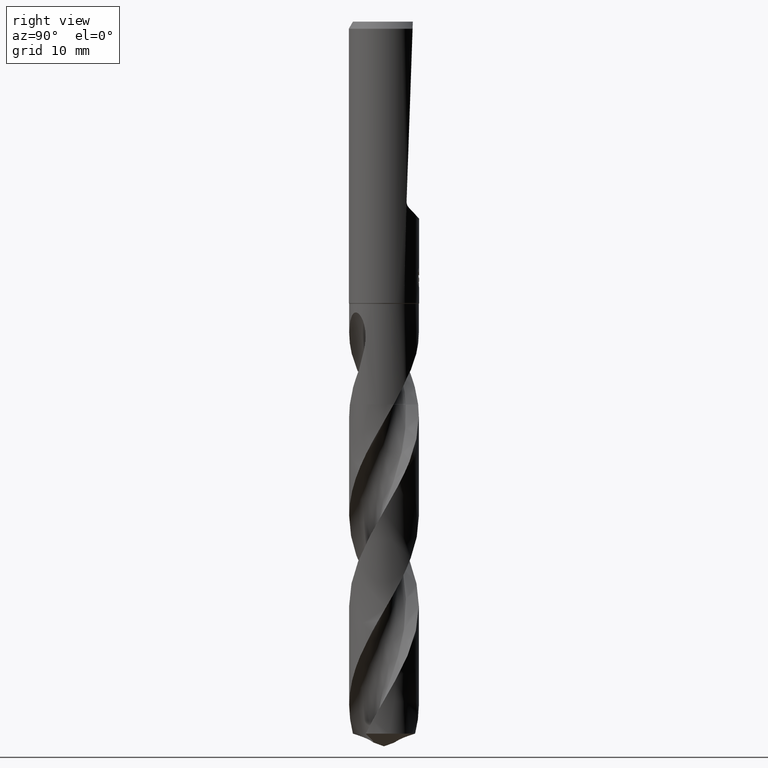
[diagram: clean part render]
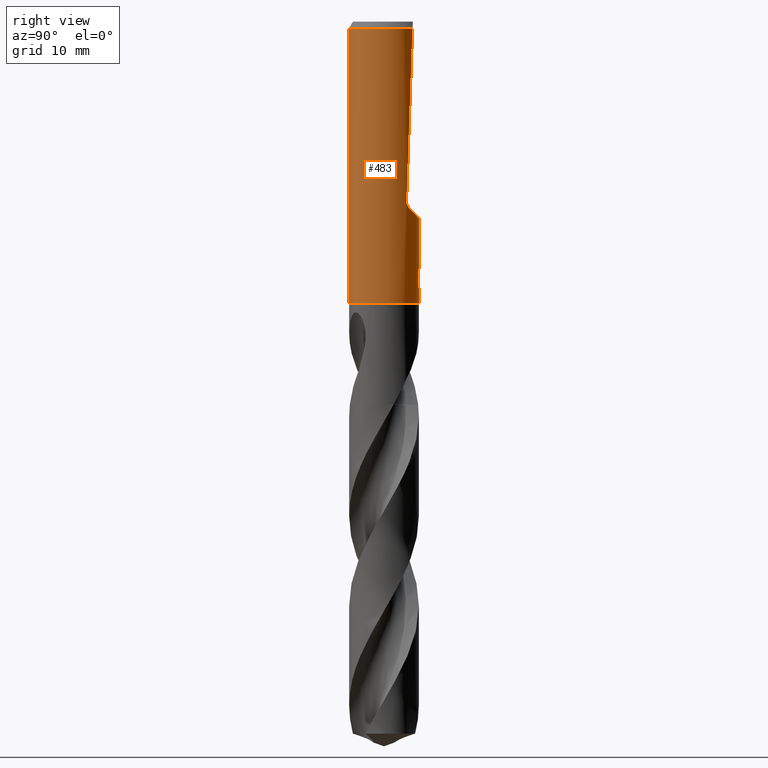
[diagram: same view with one face highlighted and labeled with its STEP entity id]
A machine part, right view. The second image highlights one B-rep face of the part: STEP entity #483.
In plain terms, the highlighted cylindrical surface (edge-blend (fillet) strip) has radius 5 mm, axis along (-0, -0, 1).
Its self-contained STEP definition (entity closure, byte-faithful):
#321=EDGE_CURVE('',#509,#711,#896,.T.);
#329=VERTEX_POINT('',#904);
#331=EDGE_CURVE('',#463,#617,#906,.T.);
#339=EDGE_CURVE('',#557,#821,#914,.T.);
#375=VERTEX_POINT('',#953);
#423=VERTEX_POINT('',#1001);
#435=EDGE_CURVE('',#617,#715,#1015,.T.);
#463=VERTEX_POINT('',#1044);
#475=EDGE_CURVE('',#763,#511,#1057,.T.);
#483=ADVANCED_FACE('',(#1065),#1066,.T.);
#509=VERTEX_POINT('',#1094);
#511=VERTEX_POINT('',#1096);
#519=EDGE_CURVE('',#715,#509,#1104,.T.);
#557=VERTEX_POINT('',#1145);
#563=EDGE_CURVE('',#671,#695,#1151,.T.);
#575=EDGE_CURVE('',#329,#763,#1167,.T.);
#597=EDGE_CURVE('',#463,#695,#1190,.T.);
#617=VERTEX_POINT('',#1214);
#671=VERTEX_POINT('',#1274);
#695=VERTEX_POINT('',#1300);
#711=VERTEX_POINT('',#1318);
#715=VERTEX_POINT('',#1323);
#719=EDGE_CURVE('',#375,#557,#1327,.T.);
#735=VERTEX_POINT('',#1344);
#763=VERTEX_POINT('',#1374);
#779=EDGE_CURVE('',#423,#671,#1392,.T.);
#819=EDGE_CURVE('',#511,#711,#1437,.T.);
#821=VERTEX_POINT('',#1439);
#831=EDGE_CURVE('',#821,#423,#1450,.T.);
#841=EDGE_CURVE('',#329,#735,#1462,.T.);
#853=EDGE_CURVE('',#735,#375,#1474,.T.);
#896=CIRCLE('',#2349,5.0);
#904=CARTESIAN_POINT('',(-4.2179236924284E-015,5.0,-38.0310253601033));
#906=ELLIPSE('',#2418,7.33139592819812,5.0);
#914=B_SPLINE_CURVE_WITH_KNOTS('',3,(#2440,#2441,#2442,#2443,#2444,#2445,#2446,#2447,#2448,#2449),.UNSPECIFIED.,.F.,.F.,(4,2,2,2,4),(8.03978938391207,8.34870158568316,8.65761378745426,8.96684541549285,9.27607704353144),.UNSPECIFIED.);
#953=CARTESIAN_POINT('',(0.873560781758957,4.92309776061503,-36.3198931596091));
#1001=CARTESIAN_POINT('',(1.33721006514658,4.81786978255647,-35.5150484364821));
#1015=B_SPLINE_CURVE_WITH_KNOTS('',3,(#2877,#2878,#2879,#2880,#2881,#2882,#2883,#2884,#2885,#2886),.UNSPECIFIED.,.F.,.F.,(4,2,2,2,4),(13.601244724545,13.9877201562878,14.2781014313783,14.5684827064689,14.8588639815594),.UNSPECIFIED.);
#1044=CARTESIAN_POINT('',(-6.12303176911188E-016,5.0,-28.0011862850709));
#1057=CIRCLE('',#4252,5.0);
#1065=FACE_OUTER_BOUND('',#4411,.T.);
#1066=CYLINDRICAL_SURFACE('',#4412,5.0);
#1094=CARTESIAN_POINT('',(2.91341920609476,4.0634946203432,-1.0));
#1096=CARTESIAN_POINT('',(6.12303176911189E-016,-5.0,-40.0));
#1104=ELLIPSE('',#4539,143.26854173922,5.0);
#1145=CARTESIAN_POINT('',(0.873560781758956,4.92309776061503,-37.7587351791531));
#1151=B_SPLINE_CURVE_WITH_KNOTS('',3,(#5012,#5013,#5014,#5015,#5016,#5017,#5018,#5019,#5020,#5021,#5022,#5023,#5024,#5025,#5026,#5027,#5028,#5029,#5030,#5031,#5032,#5033,#5034,#5035,#5036,#5037,#5038),.UNSPECIFIED.,.F.,.F.,(4,2,3,2,2,2,2,2,2,2,2,2,4),(-0.542486104801738,-0.271243052400869,0.0,0.271243052400869,0.542486104801738,0.814298814936944,1.08611152507215,1.35696845964793,1.62782539422372,1.89896433698445,2.17010327974519,2.44124222250593,2.71238116526667),.UNSPECIFIED.);
#1167=LINE('',#5278,#5279);
#1190=LINE('',#5541,#5542);
#1214=CARTESIAN_POINT('',(3.54362577285888,3.52742347641027,-26.4220412980564));
#1274=CARTESIAN_POINT('',(0.799431726384364,4.93567714856332,-35.000000276873));
#1300=CARTESIAN_POINT('',(-9.82055749138764E-015,5.0,-36.0232688117743));
#1318=CARTESIAN_POINT('',(6.12303176911189E-016,-5.0,-1.0));
#1323=CARTESIAN_POINT('',(3.83705374969661,3.20577892593035,-25.5617638699384));
#1327=LINE('',#7339,#7340);
#1344=CARTESIAN_POINT('',(0.29010312703583,4.99157692274536,-37.9998328990228));
#1374=CARTESIAN_POINT('',(0.0,5.0,-40.0));
#1392=B_SPLINE_CURVE_WITH_KNOTS('',3,(#7519,#7520,#7521,#7522,#7523,#7524,#7525,#7526,#7527,#7528),.UNSPECIFIED.,.F.,.F.,(4,2,2,2,4),(0.618463277568802,0.927694916353203,1.2369265551376,1.54583876733634,1.85475097953508),.UNSPECIFIED.);
#1437=LINE('',#8319,#8320);
#1439=CARTESIAN_POINT('',(1.33721006514658,4.81786978255646,-37.2901657003257));
#1450=LINE('',#8952,#8953);
#1462=B_SPLINE_CURVE_WITH_KNOTS('',3,(#8976,#8977,#8978,#8979,#8980,#8981,#8982,#8983,#8984,#8985,#8986,#8987,#8988,#8989,#8990,#8991),.UNSPECIFIED.,.F.,.F.,(4,2,2,2,2,2,2,4),(5.87517564836087,6.18447732711524,6.49384941721167,6.80322150730809,7.11259359740452,7.42196568750094,7.73087791711931,8.03979014673767),.UNSPECIFIED.);
#1474=ELLIPSE('',#9014,15.2399728668489,5.0);
#2349=AXIS2_PLACEMENT_3D('',#9078,#9079,#9080);
#2418=AXIS2_PLACEMENT_3D('',#9085,#9086,#9087);
#2440=CARTESIAN_POINT('',(0.596736548110758,4.96426283471664,-37.9065353597382));
#2441=CARTESIAN_POINT('',(0.696940415976904,4.95221768077604,-37.8648861955132));
#2442=CARTESIAN_POINT('',(0.792829678386026,4.93756175251447,-37.8131364650754));
#2443=CARTESIAN_POINT('',(0.969955792779445,4.90584148938556,-37.6938507691423));
#2444=CARTESIAN_POINT('',(1.05119214028325,4.88880718483703,-37.6263060709848));
#2445=CARTESIAN_POINT('',(1.1950179267128,4.85565484960812,-37.4825325659411));
#2446=CARTESIAN_POINT('',(1.26262396516471,4.83834796167932,-37.4012621113954));
#2447=CARTESIAN_POINT('',(1.38199541925443,4.80561327380657,-37.2240986142183));
#2448=CARTESIAN_POINT('',(1.4337709692914,4.79021953794996,-37.1282061077952));
#2449=CARTESIAN_POINT('',(1.47544633659597,4.77734843902196,-37.0279929829259));
#2877=CARTESIAN_POINT('',(3.5124810915168,3.55843737920691,-26.4540846778413));
#2878=CARTESIAN_POINT('',(3.59343628541809,3.47852767883522,-26.3745350059696));
#2879=CARTESIAN_POINT('',(3.66218514708417,3.40501531873085,-26.2774092731815));
#2880=CARTESIAN_POINT('',(3.75097198391672,3.30657581587786,-26.0948429812535));
#2881=CARTESIAN_POINT('',(3.78395006128267,3.26846099380161,-26.0018104981297));
#2882=CARTESIAN_POINT('',(3.82727183139471,3.21762421227073,-25.8046209150592));
#2883=CARTESIAN_POINT('',(3.83766437316493,3.20504791835327,-25.7004370243449));
#2884=CARTESIAN_POINT('',(3.83766437316493,3.20504791835327,-25.5068495076179));
#2885=CARTESIAN_POINT('',(3.82727183139471,3.21762421227073,-25.4026656169036));
#2886=CARTESIAN_POINT('',(3.80561094633861,3.24304260303619,-25.3040708253683));
#4252=AXIS2_PLACEMENT_3D('',#9195,#9196,#9197);
#4411=EDGE_LOOP('',(#9199,#9200,#9201,#9202,#9203,#9204,#9205,#9206,#9207,#9208,#9209,#9210,#9211,#9212,#9213));
#4412=AXIS2_PLACEMENT_3D('',#9214,#9215,#9216);
#4539=AXIS2_PLACEMENT_3D('',#9252,#9253,#9254);
#5012=CARTESIAN_POINT('',(0.665122770091172,4.95556371169883,-34.8135963457478));
#5013=CARTESIAN_POINT('',(0.728735196954596,4.94702581852882,-34.8772777273236));
#5014=CARTESIAN_POINT('',(0.783964166103465,4.93829748078097,-34.9579436035979));
#5015=CARTESIAN_POINT('',(0.857301933462898,4.92609533329604,-35.1349114173306));
#5016=CARTESIAN_POINT('',(0.875400981188567,4.92277087849253,-35.2312276617865));
#5017=CARTESIAN_POINT('',(0.875400981188567,4.92277087849253,-35.3216420125868));
#5018=CARTESIAN_POINT('',(0.875400981188567,4.92277087849253,-35.4120563633871));
#5019=CARTESIAN_POINT('',(0.857301933462898,4.92609533329604,-35.5083726078429));
#5020=CARTESIAN_POINT('',(0.783964166103465,4.93829748078097,-35.6853404215757));
#5021=CARTESIAN_POINT('',(0.728735196954596,4.94702581852882,-35.76600629785));
#5022=CARTESIAN_POINT('',(0.601376746032753,4.96411953593411,-35.8935028030135));
#5023=CARTESIAN_POINT('',(0.520641197115554,4.97361399538109,-35.9488552844728));
#5024=CARTESIAN_POINT('',(0.343503822480858,4.98897870858442,-36.0223670116056));
#5025=CARTESIAN_POINT('',(0.247086219827461,4.9947129574863,-36.0405166027747));
#5026=CARTESIAN_POINT('',(0.0662849978754683,5.00037576555244,-36.0405166027747));
#5027=CARTESIAN_POINT('',(-0.0299853354073752,5.00069421157822,-36.022481035651));
#5028=CARTESIAN_POINT('',(-0.207042529230845,4.99649628332508,-35.9491606175219));
#5029=CARTESIAN_POINT('',(-0.287834149954029,4.99211780487336,-35.8938794313977));
#5030=CARTESIAN_POINT('',(-0.415469449620835,4.98311973872716,-35.7663325263823));
#5031=CARTESIAN_POINT('',(-0.470822894462521,4.97792007270922,-35.6855206130663));
#5032=CARTESIAN_POINT('',(-0.544264412763406,4.97042641093864,-35.5083690868499));
#5033=CARTESIAN_POINT('',(-0.562348199187247,4.96827580785033,-35.4120216601737));
#5034=CARTESIAN_POINT('',(-0.562348199187247,4.96827580785033,-35.2312623649999));
#5035=CARTESIAN_POINT('',(-0.544264412763406,4.97042641093864,-35.1349149383237));
#5036=CARTESIAN_POINT('',(-0.470822894462521,4.97792007270922,-34.9577634121072));
#5037=CARTESIAN_POINT('',(-0.415469449620836,4.98311973872716,-34.8769514987913));
#5038=CARTESIAN_POINT('',(-0.351618594554054,4.98762111271133,-34.8131448640467));
#5278=CARTESIAN_POINT('',(-6.12303176911189E-016,5.0,-20.5));
#5279=VECTOR('',#9316,1.0);
#5541=CARTESIAN_POINT('',(-6.12303176911189E-016,5.0,-20.5));
#5542=VECTOR('',#9327,1.0);
#7339=CARTESIAN_POINT('',(0.873560781758957,4.92309776061503,-37.0393141693811));
#7340=VECTOR('',#9488,1.0);
#7519=CARTESIAN_POINT('',(1.47544634459503,4.77734843655151,-35.7772211678144));
#7520=CARTESIAN_POINT('',(1.43377097583397,4.79021953600577,-35.6770080394811));
#7521=CARTESIAN_POINT('',(1.38199542398865,4.8056132724731,-35.5811155297459));
#7522=CARTESIAN_POINT('',(1.26262396572432,4.83834796156109,-35.4039520264488));
#7523=CARTESIAN_POINT('',(1.19501792490561,4.8556548500921,-35.3226815690952));
#7524=CARTESIAN_POINT('',(1.05119213349515,4.88880718633437,-35.178908059153));
#7525=CARTESIAN_POINT('',(0.969955783216372,4.90584149133193,-35.1113633587199));
#7526=CARTESIAN_POINT('',(0.792829662772183,4.93756175507685,-34.9920776587655));
#7527=CARTESIAN_POINT('',(0.696940397087141,4.95221768350352,-34.9403279265819));
#7528=CARTESIAN_POINT('',(0.596736525802593,4.96426283739822,-34.8986787609541));
#8319=CARTESIAN_POINT('',(6.12303176911189E-016,-5.0,-20.5));
#8320=VECTOR('',#9593,1.0);
#8952=CARTESIAN_POINT('',(1.33721006514658,4.81786978255646,-36.4026070684039));
#8953=VECTOR('',#9603,1.0);
#8976=CARTESIAN_POINT('',(-1.37919625933141,4.80601890115366,-37.3124404256203));
#8977=CARTESIAN_POINT('',(-1.31957521374487,4.82312851403775,-37.4009601597598));
#8978=CARTESIAN_POINT('',(-1.25205684175205,4.84126211135571,-37.4821654513649));
#8979=CARTESIAN_POINT('',(-1.10836495207318,4.87616599259845,-37.6259115514073));
#8980=CARTESIAN_POINT('',(-1.0271524301646,4.89418890879516,-37.693486795378));
#8981=CARTESIAN_POINT('',(-0.850055905397219,4.9280353232664,-37.8128453591325));
#8982=CARTESIAN_POINT('',(-0.754172188044363,4.94382885968066,-37.8646375967458));
#8983=CARTESIAN_POINT('',(-0.553725999780852,4.97027232652294,-37.9480281920328));
#8984=CARTESIAN_POINT('',(-0.448990720596507,4.98092390938096,-37.9796924022892));
#8985=CARTESIAN_POINT('',(-0.237871423561604,4.99545922254228,-38.0213202804398));
#8986=CARTESIAN_POINT('',(-0.13148454027928,4.99933459384723,-38.0312723335086));
#8987=CARTESIAN_POINT('',(0.0746069172274575,5.00050365281921,-38.0312723335086));
#8988=CARTESIAN_POINT('',(0.180879006433096,4.99784409598263,-38.021349312763));
#8989=CARTESIAN_POINT('',(0.391840688075154,4.98574204084828,-37.9798000876985));
#8990=CARTESIAN_POINT('',(0.496532945230264,4.97630796240248,-37.9481849619546));
#8991=CARTESIAN_POINT('',(0.596736821506944,4.96426280185264,-37.9065357940623));
#9014=AXIS2_PLACEMENT_3D('',#9633,#9634,#9635);
#9078=CARTESIAN_POINT('',(0.0,0.0,-1.0));
#9079=DIRECTION('',(0.0,0.0,-1.0));
#9080=DIRECTION('',(0.0,1.0,0.0));
#9085=CARTESIAN_POINT('',(0.0,0.0,-22.6393427349475));
#9086=DIRECTION('',(0.0,-0.73135370161917,-0.681998360062499));
#9087=DIRECTION('',(0.0,0.681998360062499,-0.73135370161917));
#9195=CARTESIAN_POINT('',(0.0,0.0,-40.0));
#9196=DIRECTION('',(0.0,0.0,-1.0));
#9197=DIRECTION('',(0.0,1.0,0.0));
#9199=ORIENTED_EDGE('',*,*,#597,.F.);
#9200=ORIENTED_EDGE('',*,*,#331,.T.);
#9201=ORIENTED_EDGE('',*,*,#435,.T.);
#9202=ORIENTED_EDGE('',*,*,#519,.T.);
#9203=ORIENTED_EDGE('',*,*,#321,.T.);
#9204=ORIENTED_EDGE('',*,*,#819,.F.);
#9205=ORIENTED_EDGE('',*,*,#475,.F.);
#9206=ORIENTED_EDGE('',*,*,#575,.F.);
#9207=ORIENTED_EDGE('',*,*,#841,.T.);
#9208=ORIENTED_EDGE('',*,*,#853,.T.);
#9209=ORIENTED_EDGE('',*,*,#719,.T.);
#9210=ORIENTED_EDGE('',*,*,#339,.T.);
#9211=ORIENTED_EDGE('',*,*,#831,.T.);
#9212=ORIENTED_EDGE('',*,*,#779,.T.);
#9213=ORIENTED_EDGE('',*,*,#563,.T.);
#9214=CARTESIAN_POINT('',(0.0,0.0,-20.5));
#9215=DIRECTION('',(-0.0,-0.0,1.0));
#9216=DIRECTION('',(0.0,1.0,0.0));
#9252=CARTESIAN_POINT('',(0.0,0.0,-117.363261161914));
#9253=DIRECTION('',(0.0,-0.999390827019096,0.0348994967025007));
#9254=DIRECTION('',(0.0,0.0348994967025007,0.999390827019096));
#9316=DIRECTION('',(0.0,0.0,-1.0));
#9327=DIRECTION('',(0.0,0.0,-1.0));
#9488=DIRECTION('',(0.0,0.0,-1.0));
#9593=DIRECTION('',(-0.0,-0.0,1.0));
#9603=DIRECTION('',(-0.0,-0.0,1.0));
#9633=CARTESIAN_POINT('',(0.0,0.0,-38.8351219173269));
#9634=DIRECTION('',(0.944648353914092,0.0,-0.328084573619969));
#9635=DIRECTION('',(0.328084573619969,-0.0,0.944648353914092));